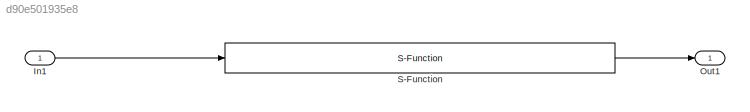
MODEL slx_d90e501935e8
KIND model
CONFIG AbsTol = auto
CONFIG FixedStep = auto
CONFIG InitFcn = % Amplifier Gain used for yaw and pitch axes: set VoltPAQ to 3.\nK_AMP = 3;\n% Amplifier Maximum Output Voltage (V)\nVMAX_AMP = 24;\n% Digital-to-Analog Maximum Voltage (V): set to 10 for Q4/Q8 cards\nVMAX_DAC = 10;\n\n% Propeller force-thrust constant found experimentally (N/V)\nKf = 0.1188;\n% Mass of the helicopter body (kg)\nmh = 1.308;\n% Mass of counter-weight (kg)\nmw = 1.924;\n% Mass of front propeller...<+463ch>
CONFIG MaxStep = auto
CONFIG MinStep = auto
CONFIG RelTol = 1e-3
CONFIG SampleTimeConstraint = Unconstrained
CONFIG Solver = VariableStepAuto
CONFIG SolverMode = Auto
CONFIG SolverName = VariableStepAuto
CONFIG StartTime = 0.0
CONFIG StopTime = 10.0
BLOCK [S-Function]  S-Function
  EnableBusSupport = off
  FunctionName = Nonlinear_Helicopter_SFunc
  Parameters = par,X0
  Ports = [1, 1]
  SFunctionDeploymentMode = off
BLOCK [Inport] In1
  IconDisplay = Port number
BLOCK [Outport] Out1
  IconDisplay = Port number
LINE  S-Function:1 -> Out1:1
LINE In1:1 ->  S-Function:1
